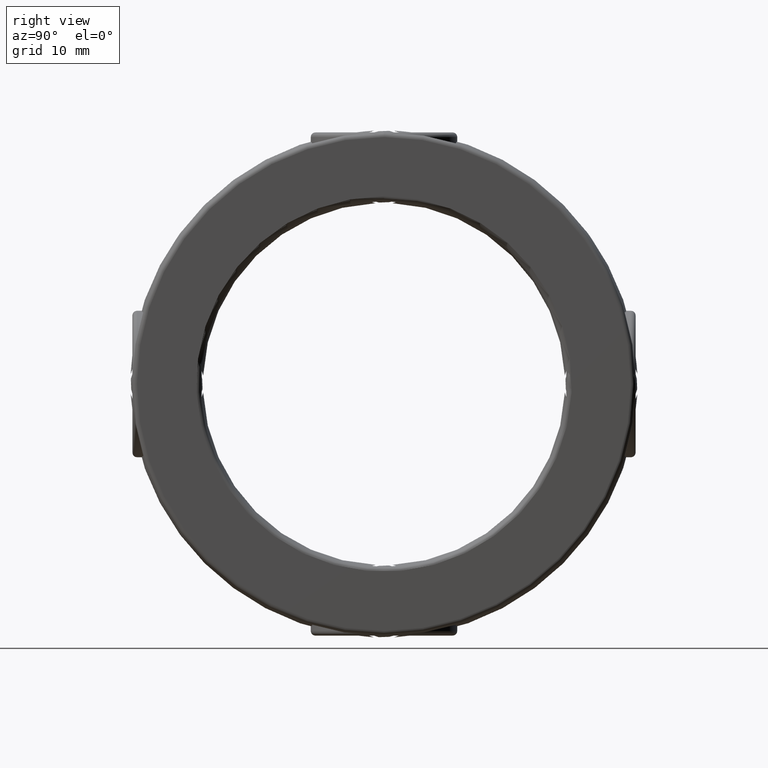
[diagram: clean part render]
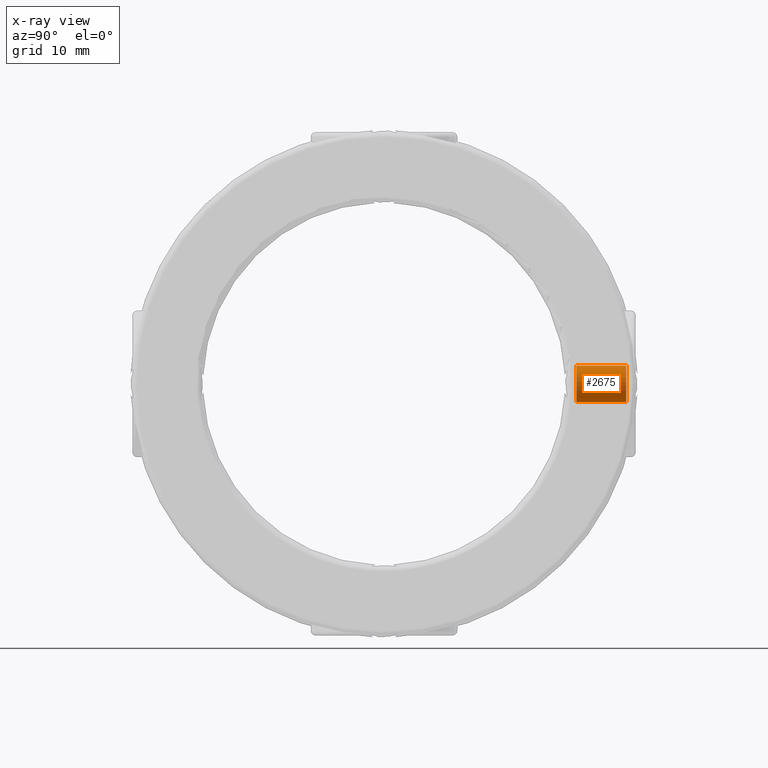
[diagram: x-ray — body ghosted, one internal face saturated and labeled with its STEP entity id]
A machine part, right view, then the same camera in x-ray: the body is ghosted and one INTERNAL B-rep face — a face not visible from any outside direction — is saturated and labeled: STEP entity #2675.
In plain terms, the highlighted cylindrical surface (bore or boss wall) has radius 2.0002 mm, axis along (-0, 1, -0).
Its self-contained STEP definition (entity closure, byte-faithful):
#209 = CARTESIAN_POINT ( 'NONE',  ( 0.0000000000000000000, 0.8275000000000001200, 0.0000000000000000000 ) ) ;
#326 = DIRECTION ( 'NONE',  ( 0.0000000000000000000, 0.0000000000000000000, 1.000000000000000000 ) ) ;
#588 = DIRECTION ( 'NONE',  ( -0.0000000000000000000, 1.000000000000000000, -0.0000000000000000000 ) ) ;
#779 = CIRCLE ( 'NONE', #785, 0.07874999999999997300 ) ;
#785 = AXIS2_PLACEMENT_3D ( 'NONE', #1554, #588, #326 ) ;
#805 = AXIS2_PLACEMENT_3D ( 'NONE', #209, #3201, #2910 ) ;
#917 = CYLINDRICAL_SURFACE ( 'NONE', #972, 0.07875000000000000100 ) ;
#972 = AXIS2_PLACEMENT_3D ( 'NONE', #1242, #1725, #2219 ) ;
#991 = FACE_OUTER_BOUND ( 'NONE', #2949, .T. ) ;
#1038 = CARTESIAN_POINT ( 'NONE',  ( 0.0000000000000000000, 1.042500000000000000, 0.07874999999999997300 ) ) ;
#1242 = CARTESIAN_POINT ( 'NONE',  ( 0.0000000000000000000, 1.091000000000000200, 0.0000000000000000000 ) ) ;
#1261 = CARTESIAN_POINT ( 'NONE',  ( 0.0000000000000000000, 0.8275000000000001200, 0.07875000000000001400 ) ) ;
#1487 = EDGE_CURVE ( 'NONE', #3187, #3187, #3171, .T. ) ;
#1554 = CARTESIAN_POINT ( 'NONE',  ( 0.0000000000000000000, 1.042500000000000000, 0.0000000000000000000 ) ) ;
#1725 = DIRECTION ( 'NONE',  ( -0.0000000000000000000, 1.000000000000000000, -0.0000000000000000000 ) ) ;
#1772 = EDGE_CURVE ( 'NONE', #3150, #3150, #779, .T. ) ;
#2218 = EDGE_LOOP ( 'NONE', ( #2520 ) ) ;
#2219 = DIRECTION ( 'NONE',  ( 0.0000000000000000000, 0.0000000000000000000, 1.000000000000000000 ) ) ;
#2520 = ORIENTED_EDGE ( 'NONE', *, *, #1487, .F. ) ;
#2675 = ADVANCED_FACE ( 'NONE', ( #2844, #991 ), #917, .F. ) ;
#2844 = FACE_OUTER_BOUND ( 'NONE', #2218, .T. ) ;
#2910 = DIRECTION ( 'NONE',  ( 0.0000000000000000000, 0.0000000000000000000, 1.000000000000000000 ) ) ;
#2949 = EDGE_LOOP ( 'NONE', ( #3073 ) ) ;
#3073 = ORIENTED_EDGE ( 'NONE', *, *, #1772, .T. ) ;
#3150 = VERTEX_POINT ( 'NONE', #1038 ) ;
#3171 = CIRCLE ( 'NONE', #805, 0.07875000000000001400 ) ;
#3187 = VERTEX_POINT ( 'NONE', #1261 ) ;
#3201 = DIRECTION ( 'NONE',  ( -0.0000000000000000000, 1.000000000000000000, -0.0000000000000000000 ) ) ;